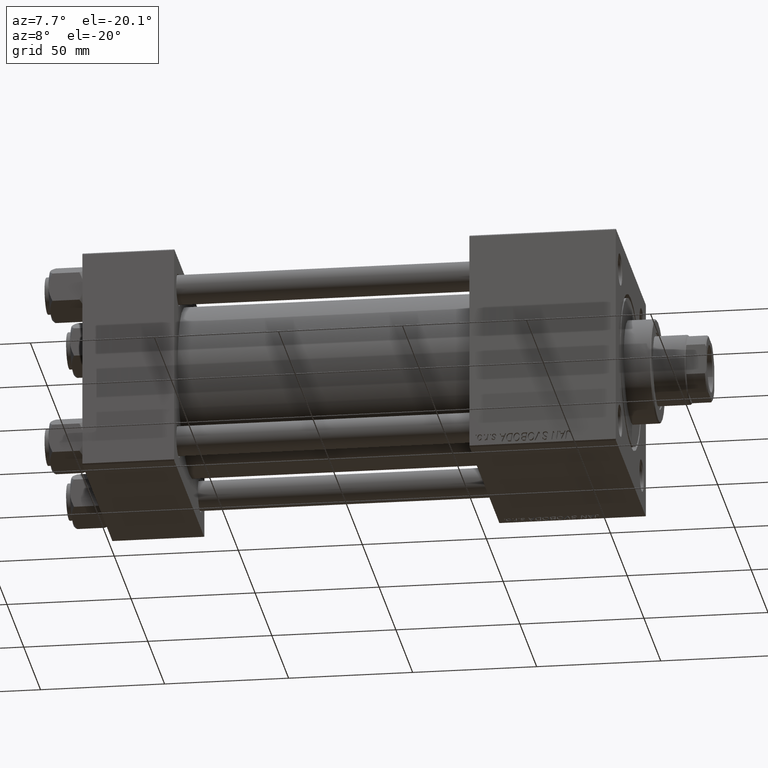
[diagram: clean part render]
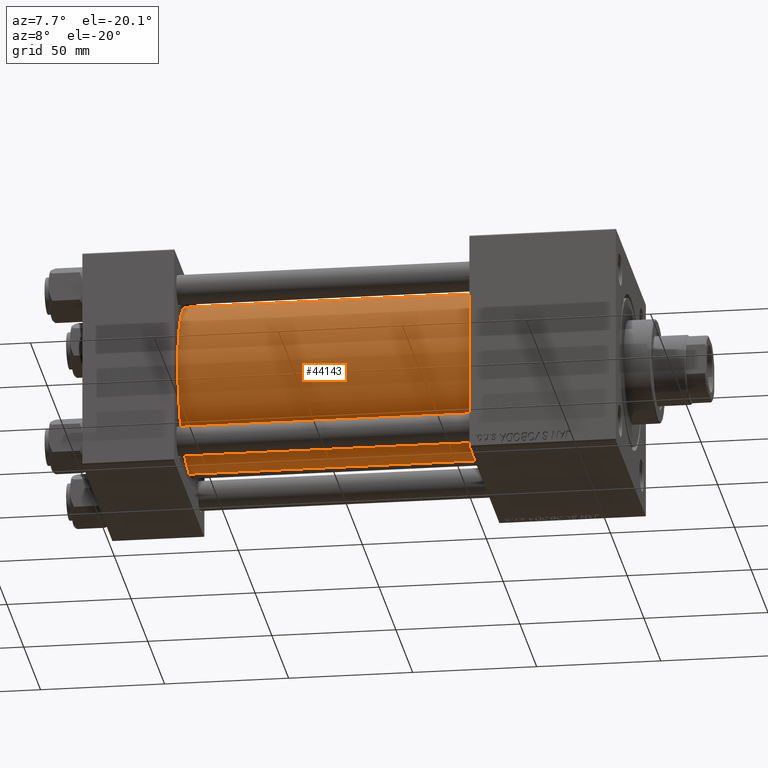
[diagram: same view with one face highlighted and labeled with its STEP entity id]
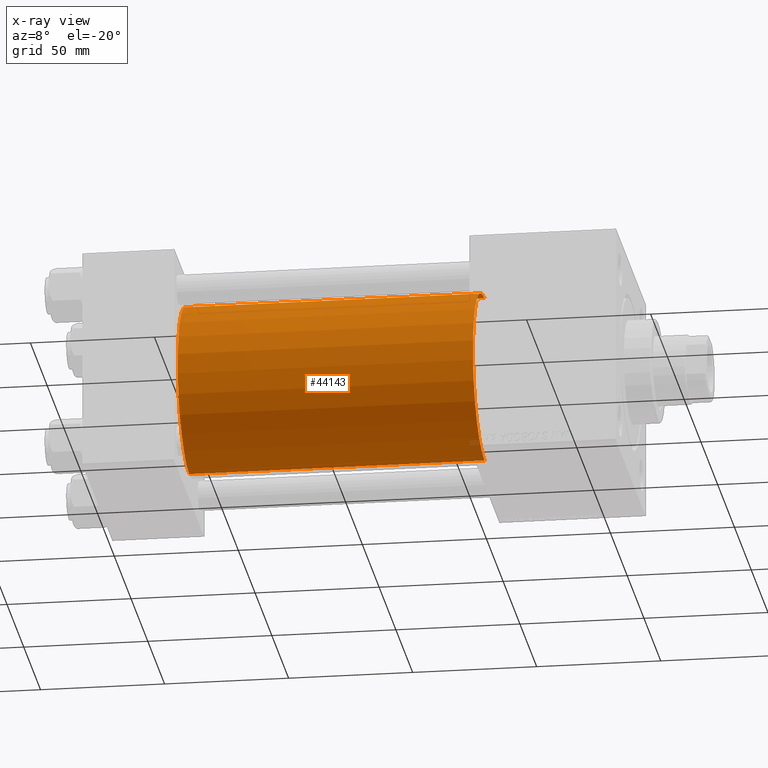
[diagram: x-ray of the same camera — body ghosted, the highlighted face saturated]
A machine part, auxiliary view. The second image highlights one B-rep face of the part: STEP entity #44143.
The next image is the same camera in x-ray: the body ghosted, the highlighted face saturated — about 0% of this face is hidden behind the body in this view.
In plain terms, the highlighted cylindrical surface (partial cylindrical patch) has radius 34.5 mm, axis along (-1, -0, -0).
Its self-contained STEP definition (entity closure, byte-faithful):
#724 = DIRECTION ( 'NONE',  ( 1.000000000000000000, 0.000000000000000000, 0.000000000000000000 ) ) ;
#1745 = AXIS2_PLACEMENT_3D ( 'NONE', #43887, #724, #20498 ) ;
#2072 = CARTESIAN_POINT ( 'NONE',  ( 156.0000000000000000, -2.602085213965210642E-15, 34.50000000000000000 ) ) ;
#2271 = FACE_OUTER_BOUND ( 'NONE', #8959, .T. ) ;
#3204 = CARTESIAN_POINT ( 'NONE',  ( 156.0000000000000000, 1.622946243093158675E-15, -34.50000000000000000 ) ) ;
#4252 = EDGE_CURVE ( 'NONE', #8577, #47489, #26484, .T. ) ;
#4535 = EDGE_CURVE ( 'NONE', #8577, #48267, #47422, .T. ) ;
#6371 = VERTEX_POINT ( 'NONE', #43932 ) ;
#8236 = VECTOR ( 'NONE', #18573, 1000.000000000000000 ) ;
#8311 = DIRECTION ( 'NONE',  ( 0.000000000000000000, 0.000000000000000000, 1.000000000000000000 ) ) ;
#8577 = VERTEX_POINT ( 'NONE', #15643 ) ;
#8959 = EDGE_LOOP ( 'NONE', ( #40613, #21337, #42851, #35014 ) ) ;
#10025 = VECTOR ( 'NONE', #30149, 1000.000000000000000 ) ;
#11464 = CARTESIAN_POINT ( 'NONE',  ( 156.0000000000000000, 1.622946243093158675E-15, -34.50000000000000000 ) ) ;
#13220 = DIRECTION ( 'NONE',  ( -1.000000000000000000, -0.000000000000000000, -0.000000000000000000 ) ) ;
#15643 = CARTESIAN_POINT ( 'NONE',  ( 156.0000000000000000, -2.602085213965210642E-15, 34.50000000000000000 ) ) ;
#18573 = DIRECTION ( 'NONE',  ( -1.000000000000000000, -0.000000000000000000, -0.000000000000000000 ) ) ;
#20498 = DIRECTION ( 'NONE',  ( 0.000000000000000000, 0.000000000000000000, -1.000000000000000000 ) ) ;
#20783 = CARTESIAN_POINT ( 'NONE',  ( 37.00000000000000711, -2.602085213965210642E-15, 0.000000000000000000 ) ) ;
#21337 = ORIENTED_EDGE ( 'NONE', *, *, #4535, .F. ) ;
#21681 = CIRCLE ( 'NONE', #23339, 34.50000000000000000 ) ;
#23339 = AXIS2_PLACEMENT_3D ( 'NONE', #20783, #34905, #8311 ) ;
#25424 = DIRECTION ( 'NONE',  ( 0.000000000000000000, 0.000000000000000000, 1.000000000000000000 ) ) ;
#25706 = CARTESIAN_POINT ( 'NONE',  ( 37.00000000000000711, -2.602085213965210642E-15, 34.50000000000000000 ) ) ;
#26484 = LINE ( 'NONE', #2072, #10025 ) ;
#30149 = DIRECTION ( 'NONE',  ( -1.000000000000000000, -0.000000000000000000, -0.000000000000000000 ) ) ;
#34406 = LINE ( 'NONE', #3204, #8236 ) ;
#34905 = DIRECTION ( 'NONE',  ( 1.000000000000000000, -0.000000000000000000, 0.000000000000000000 ) ) ;
#35014 = ORIENTED_EDGE ( 'NONE', *, *, #42265, .T. ) ;
#37370 = EDGE_CURVE ( 'NONE', #48267, #6371, #34406, .T. ) ;
#40050 = AXIS2_PLACEMENT_3D ( 'NONE', #40781, #13220, #25424 ) ;
#40613 = ORIENTED_EDGE ( 'NONE', *, *, #37370, .F. ) ;
#40781 = CARTESIAN_POINT ( 'NONE',  ( 156.0000000000000000, -2.602085213965210642E-15, 0.000000000000000000 ) ) ;
#42265 = EDGE_CURVE ( 'NONE', #47489, #6371, #21681, .T. ) ;
#42851 = ORIENTED_EDGE ( 'NONE', *, *, #4252, .T. ) ;
#43887 = CARTESIAN_POINT ( 'NONE',  ( 156.0000000000000000, -2.602085213965210642E-15, 0.000000000000000000 ) ) ;
#43932 = CARTESIAN_POINT ( 'NONE',  ( 37.00000000000000711, 1.622946243093158675E-15, -34.50000000000000000 ) ) ;
#44143 = ADVANCED_FACE ( 'NONE', ( #2271 ), #44925, .T. ) ;
#44925 = CYLINDRICAL_SURFACE ( 'NONE', #40050, 34.50000000000000000 ) ;
#47422 = CIRCLE ( 'NONE', #1745, 34.50000000000000000 ) ;
#47489 = VERTEX_POINT ( 'NONE', #25706 ) ;
#48267 = VERTEX_POINT ( 'NONE', #11464 ) ;